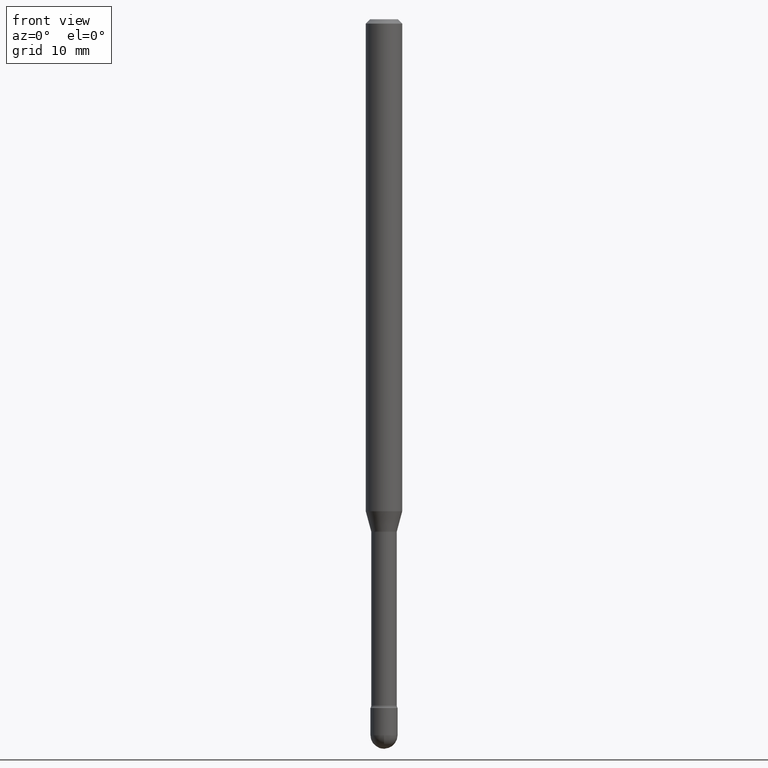
[diagram: clean part render]
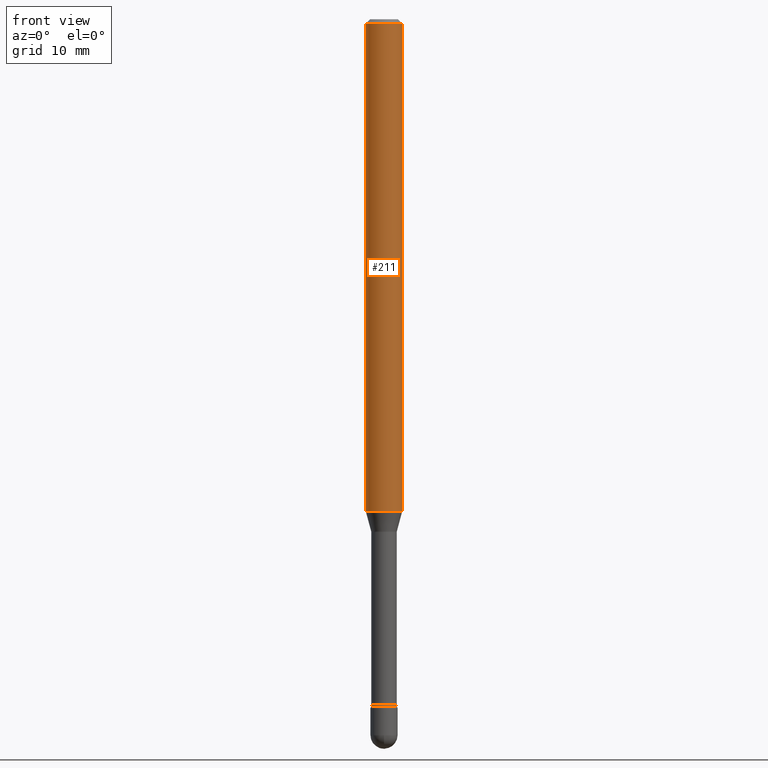
[diagram: same view with one face highlighted and labeled with its STEP entity id]
A machine part, front view. The second image highlights one B-rep face of the part: STEP entity #211.
In plain terms, the highlighted cylindrical surface (edge-blend (fillet) strip) has radius 1.5875 mm, axis along (-0, 0, 1).
Its self-contained STEP definition (entity closure, byte-faithful):
#9 = CARTESIAN_POINT ( 'NONE',  ( 0.06250000000000000000, -4.888073874380391431E-16, -0.01500000000000008271 ) ) ;
#34 = ORIENTED_EDGE ( 'NONE', *, *, #378, .F. ) ;
#54 = DIRECTION ( 'NONE',  ( 1.000000000000000000, -6.982962677686266711E-15, 4.852736867747366207E-29 ) ) ;
#79 = DIRECTION ( 'NONE',  ( 1.000000000000000000, -6.982962677686266711E-15, 0.000000000000000000 ) ) ;
#82 = DIRECTION ( 'NONE',  ( 1.000000000000000000, -6.982962677686262766E-15, 0.000000000000000000 ) ) ;
#84 = VERTEX_POINT ( 'NONE', #451 ) ;
#85 = CIRCLE ( 'NONE', #458, 0.06250000000000000000 ) ;
#93 = AXIS2_PLACEMENT_3D ( 'NONE', #367, #146, #54 ) ;
#123 = DIRECTION ( 'NONE',  ( -2.445468806185136597E-29, 3.491481338843145583E-15, 1.000000000000000000 ) ) ;
#126 = CARTESIAN_POINT ( 'NONE',  ( 3.668203209277725232E-31, -5.237222008264747365E-17, -0.01500000000000008271 ) ) ;
#146 = DIRECTION ( 'NONE',  ( -2.445468806185136597E-29, 3.491481338843145583E-15, 1.000000000000000000 ) ) ;
#152 = AXIS2_PLACEMENT_3D ( 'NONE', #126, #123, #79 ) ;
#169 = DIRECTION ( 'NONE',  ( -2.445468806185136877E-29, 3.491481338843145188E-15, 1.000000000000000000 ) ) ;
#178 = CARTESIAN_POINT ( 'NONE',  ( 4.122662883600555440E-29, -5.886069978904029842E-15, -1.685837444817705366 ) ) ;
#189 = CARTESIAN_POINT ( 'NONE',  ( -0.06250000000000000000, -5.441980769053966437E-15, -1.685837444817705366 ) ) ;
#211 = ADVANCED_FACE ( 'NONE', ( #455 ), #503, .T. ) ;
#217 = VERTEX_POINT ( 'NONE', #9 ) ;
#222 = LINE ( 'NONE', #407, #448 ) ;
#304 = ORIENTED_EDGE ( 'NONE', *, *, #352, .T. ) ;
#310 = CARTESIAN_POINT ( 'NONE',  ( -0.06250000000000000000, -2.525131889643276042E-15, -0.01500000000000008271 ) ) ;
#313 = DIRECTION ( 'NONE',  ( -2.445468806185136597E-29, 3.491481338843145583E-15, 1.000000000000000000 ) ) ;
#349 = LINE ( 'NONE', #428, #360 ) ;
#352 = EDGE_CURVE ( 'NONE', #84, #217, #349, .T. ) ;
#360 = VECTOR ( 'NONE', #169, 39.37007874015748143 ) ;
#367 = CARTESIAN_POINT ( 'NONE',  ( -1.169113584055446105E-44, 1.669184350826100908E-30, 4.780733988912460139E-16 ) ) ;
#378 = EDGE_CURVE ( 'NONE', #389, #217, #549, .T. ) ;
#389 = VERTEX_POINT ( 'NONE', #310 ) ;
#404 = EDGE_LOOP ( 'NONE', ( #529, #524, #304, #34 ) ) ;
#407 = CARTESIAN_POINT ( 'NONE',  ( -0.06250000000000000000, 4.440892098500642925E-16, 4.780733988912429571E-16 ) ) ;
#428 = CARTESIAN_POINT ( 'NONE',  ( 0.06250000000000000000, -4.364351673553899931E-16, 4.780733988912490708E-16 ) ) ;
#436 = VERTEX_POINT ( 'NONE', #189 ) ;
#445 = EDGE_CURVE ( 'NONE', #436, #389, #222, .T. ) ;
#448 = VECTOR ( 'NONE', #479, 39.37007874015748143 ) ;
#451 = CARTESIAN_POINT ( 'NONE',  ( 0.06250000000000000000, -6.322505146259420722E-15, -1.685837444817705366 ) ) ;
#455 = FACE_OUTER_BOUND ( 'NONE', #404, .T. ) ;
#458 = AXIS2_PLACEMENT_3D ( 'NONE', #178, #313, #82 ) ;
#479 = DIRECTION ( 'NONE',  ( -2.445468806185136877E-29, 3.491481338843145188E-15, 1.000000000000000000 ) ) ;
#503 = CYLINDRICAL_SURFACE ( 'NONE', #93, 0.06250000000000000000 ) ;
#524 = ORIENTED_EDGE ( 'NONE', *, *, #525, .T. ) ;
#525 = EDGE_CURVE ( 'NONE', #436, #84, #85, .T. ) ;
#529 = ORIENTED_EDGE ( 'NONE', *, *, #445, .F. ) ;
#549 = CIRCLE ( 'NONE', #152, 0.06250000000000000000 ) ;